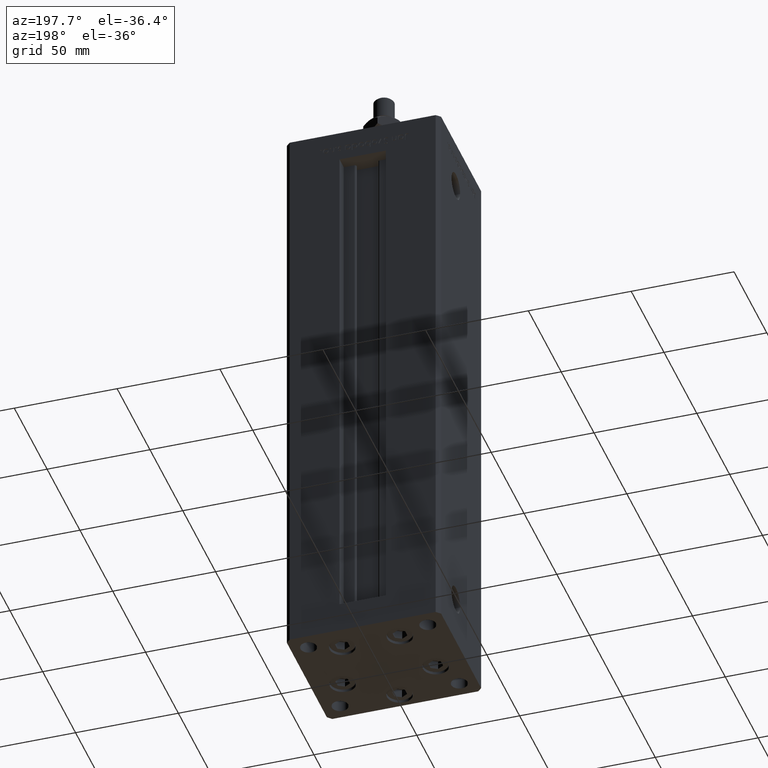
[diagram: clean part render]
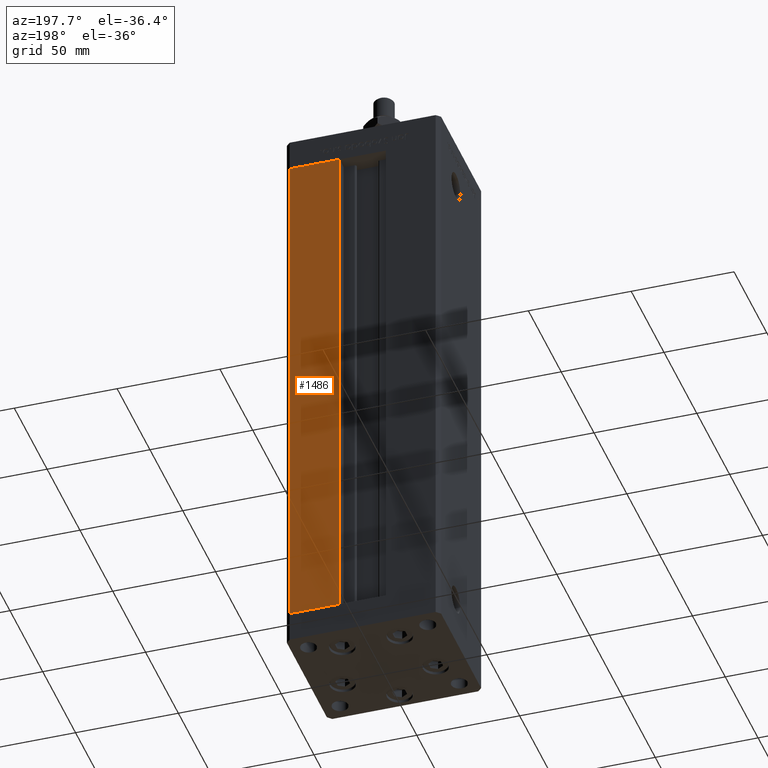
[diagram: same view with one face highlighted and labeled with its STEP entity id]
A machine part, auxiliary view. The second image highlights one B-rep face of the part: STEP entity #1486.
In plain terms, the highlighted planar face has unit normal (0, -1, 0).
Its self-contained STEP definition (entity closure, byte-faithful):
#261 = EDGE_CURVE ( 'NONE', #51519, #43607, #33447, .T. ) ;
#924 = ORIENTED_EDGE ( 'NONE', *, *, #8452, .T. ) ;
#1197 = DIRECTION ( 'NONE',  ( -0.000000000000000000, -0.000000000000000000, 1.000000000000000000 ) ) ;
#1486 = ADVANCED_FACE ( 'NONE', ( #15288 ), #44380, .F. ) ;
#2658 = VERTEX_POINT ( 'NONE', #35883 ) ;
#5811 = CARTESIAN_POINT ( 'NONE',  ( 11.25000000000000178, 32.49999999999999289, 0.000000000000000000 ) ) ;
#6340 = VERTEX_POINT ( 'NONE', #12262 ) ;
#7149 = CARTESIAN_POINT ( 'NONE',  ( -11.25000000000000178, 32.49999999999999289, 256.0000000000000000 ) ) ;
#8452 = EDGE_CURVE ( 'NONE', #43607, #6340, #9998, .T. ) ;
#9806 = ORIENTED_EDGE ( 'NONE', *, *, #16170, .T. ) ;
#9998 = LINE ( 'NONE', #34451, #25071 ) ;
#12262 = CARTESIAN_POINT ( 'NONE',  ( 11.25000000000000178, 32.49999999999999289, 0.000000000000000000 ) ) ;
#14462 = EDGE_LOOP ( 'NONE', ( #924, #9806, #34224, #32960 ) ) ;
#15288 = FACE_OUTER_BOUND ( 'NONE', #14462, .T. ) ;
#16153 = VECTOR ( 'NONE', #45428, 1000.000000000000000 ) ;
#16170 = EDGE_CURVE ( 'NONE', #6340, #2658, #18566, .T. ) ;
#18566 = LINE ( 'NONE', #5811, #50993 ) ;
#21379 = AXIS2_PLACEMENT_3D ( 'NONE', #7149, #36204, #52788 ) ;
#23001 = LINE ( 'NONE', #52364, #25027 ) ;
#25027 = VECTOR ( 'NONE', #27361, 1000.000000000000000 ) ;
#25071 = VECTOR ( 'NONE', #51039, 1000.000000000000000 ) ;
#27361 = DIRECTION ( 'NONE',  ( 1.000000000000000000, 0.000000000000000000, 0.000000000000000000 ) ) ;
#28851 = CARTESIAN_POINT ( 'NONE',  ( 35.50000000000000000, 32.49999999999999289, 256.0000000000000000 ) ) ;
#31733 = CARTESIAN_POINT ( 'NONE',  ( 35.50000000000000000, 32.49999999999999289, 256.0000000000000000 ) ) ;
#32960 = ORIENTED_EDGE ( 'NONE', *, *, #261, .T. ) ;
#33447 = LINE ( 'NONE', #28851, #16153 ) ;
#34224 = ORIENTED_EDGE ( 'NONE', *, *, #53265, .T. ) ;
#34451 = CARTESIAN_POINT ( 'NONE',  ( -11.25000000000000178, 32.49999999999999289, 0.000000000000000000 ) ) ;
#35883 = CARTESIAN_POINT ( 'NONE',  ( 11.24999999999999467, 32.49999999999999289, 256.0000000000000000 ) ) ;
#36204 = DIRECTION ( 'NONE',  ( 0.000000000000000000, -1.000000000000000000, 0.000000000000000000 ) ) ;
#43607 = VERTEX_POINT ( 'NONE', #44478 ) ;
#44380 = PLANE ( 'NONE',  #21379 ) ;
#44478 = CARTESIAN_POINT ( 'NONE',  ( 35.50000000000000000, 32.49999999999999289, 0.000000000000000000 ) ) ;
#45428 = DIRECTION ( 'NONE',  ( -0.000000000000000000, -0.000000000000000000, -1.000000000000000000 ) ) ;
#50993 = VECTOR ( 'NONE', #1197, 1000.000000000000000 ) ;
#51039 = DIRECTION ( 'NONE',  ( -1.000000000000000000, 0.000000000000000000, 0.000000000000000000 ) ) ;
#51519 = VERTEX_POINT ( 'NONE', #31733 ) ;
#52364 = CARTESIAN_POINT ( 'NONE',  ( -11.25000000000000178, 32.49999999999999289, 256.0000000000000000 ) ) ;
#52788 = DIRECTION ( 'NONE',  ( 0.000000000000000000, -0.000000000000000000, -1.000000000000000000 ) ) ;
#53265 = EDGE_CURVE ( 'NONE', #2658, #51519, #23001, .T. ) ;